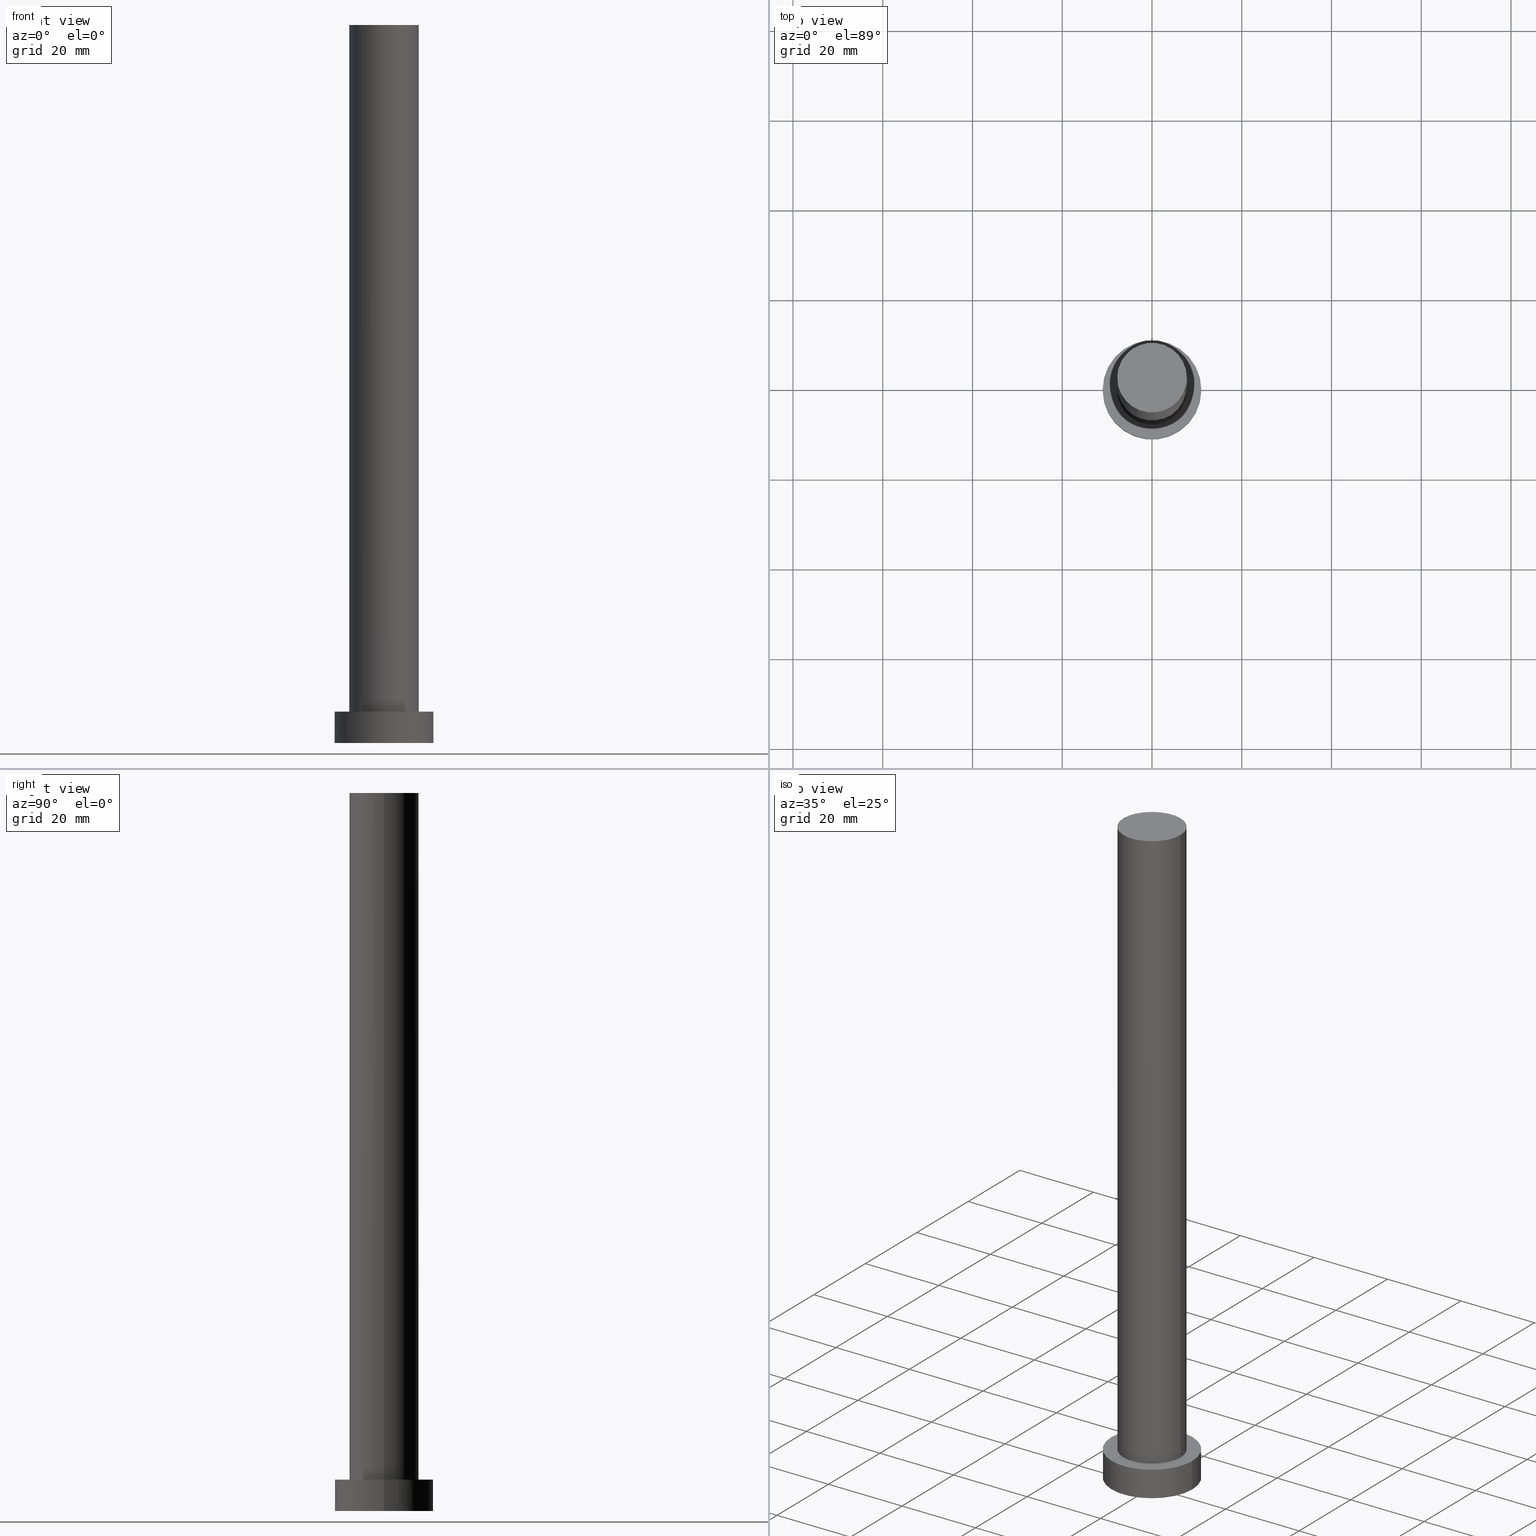
[diagram: canonical four-view strip — front | top / right | iso, engineering-drawing reading convention]
A machine part, canonical four-view strip (front | top / right | iso — engineering-drawing reading convention). The complete STEP part file that produces these views, byte-faithful:
ISO-10303-21;
HEADER;
FILE_DESCRIPTION (( 'STEP AP203' ),
    '1' );
FILE_NAME ('2d6e.STEP',
    '2023-02-13T09:48:51',
    ( '' ),
    ( '' ),
    'SwSTEP 2.0',
    'SolidWorks 2019',
    '' );
FILE_SCHEMA (( 'CONFIG_CONTROL_DESIGN' ));
ENDSEC;

DATA;
#1 = ORIENTED_EDGE ( 'NONE', *, *, #159, .T. ) ;
#2 = APPROVAL_STATUS ( 'not_yet_approved' ) ;
#3 = ORIENTED_EDGE ( 'NONE', *, *, #159, .F. ) ;
#4 = DIRECTION ( 'NONE',  ( 0.000000000000000000, 0.000000000000000000, 1.000000000000000000 ) ) ;
#5 = EDGE_CURVE ( 'NONE', #41, #19, #140, .T. ) ;
#6 = ADVANCED_BREP_SHAPE_REPRESENTATION ( '2d6e', ( #134, #114 ), #236 ) ;
#7 = PLANE ( 'NONE',  #153 ) ;
#8 = PRODUCT_DEFINITION_SHAPE ( 'NONE', 'NONE',  #75 ) ;
#9 = ORIENTED_EDGE ( 'NONE', *, *, #201, .F. ) ;
#10 = DIRECTION ( 'NONE',  ( 0.000000000000000000, 0.000000000000000000, 1.000000000000000000 ) ) ;
#11 = CARTESIAN_POINT ( 'NONE',  ( -11.00000000000000000, 0.000000000000000000, 0.000000000000000000 ) ) ;
#12 = CARTESIAN_POINT ( 'NONE',  ( 0.000000000000000000, 0.000000000000000000, 7.000000000000000000 ) ) ;
#13 = AXIS2_PLACEMENT_3D ( 'NONE', #71, #31, #28 ) ;
#14 = EDGE_CURVE ( 'NONE', #80, #98, #183, .T. ) ;
#15 = PERSON_AND_ORGANIZATION ( #214, #240 ) ;
#16 = LOCAL_TIME ( 10, 48, 51.00000000000000000, #230 ) ;
#17 = AXIS2_PLACEMENT_3D ( 'NONE', #59, #143, #223 ) ;
#18 = LOCAL_TIME ( 10, 48, 51.00000000000000000, #155 ) ;
#19 = VERTEX_POINT ( 'NONE', #47 ) ;
#20 = PERSON_AND_ORGANIZATION ( #214, #240 ) ;
#21 = ORIENTED_EDGE ( 'NONE', *, *, #33, .F. ) ;
#22 = ORIENTED_EDGE ( 'NONE', *, *, #95, .F. ) ;
#23 = FACE_OUTER_BOUND ( 'NONE', #174, .T. ) ;
#24 = PERSON_AND_ORGANIZATION ( #214, #240 ) ;
#25 = CARTESIAN_POINT ( 'NONE',  ( 0.000000000000000000, 0.000000000000000000, 160.0000000000000000 ) ) ;
#26 = CARTESIAN_POINT ( 'NONE',  ( -7.750000000000000000, 0.000000000000000000, 7.000000000000000000 ) ) ;
#27 = PERSON_AND_ORGANIZATION_ROLE ( 'classification_officer' ) ;
#28 = DIRECTION ( 'NONE',  ( -1.000000000000000000, 0.000000000000000000, 0.000000000000000000 ) ) ;
#29 = EDGE_CURVE ( 'NONE', #239, #195, #175, .T. ) ;
#30 = AXIS2_PLACEMENT_3D ( 'NONE', #228, #124, #202 ) ;
#31 = DIRECTION ( 'NONE',  ( -0.000000000000000000, -0.000000000000000000, -1.000000000000000000 ) ) ;
#32 =( NAMED_UNIT ( * ) PLANE_ANGLE_UNIT ( ) SI_UNIT ( $, .RADIAN. ) );
#33 = EDGE_CURVE ( 'NONE', #195, #239, #110, .T. ) ;
#34 = LOCAL_TIME ( 10, 48, 51.00000000000000000, #123 ) ;
#35 = DIRECTION ( 'NONE',  ( 1.000000000000000000, 0.000000000000000000, -0.000000000000000000 ) ) ;
#36 = VECTOR ( 'NONE', #65, 1000.000000000000000 ) ;
#37 = PERSON_AND_ORGANIZATION_ROLE ( 'design_owner' ) ;
#38 = CLOSED_SHELL ( 'NONE', ( #135, #253, #77, #209, #251, #184, #255 ) ) ;
#39 = CIRCLE ( 'NONE', #53, 7.750000000000000000 ) ;
#40 = LINE ( 'NONE', #100, #207 ) ;
#41 = VERTEX_POINT ( 'NONE', #11 ) ;
#42 = EDGE_LOOP ( 'NONE', ( #158, #117, #1, #9 ) ) ;
#43 = APPROVAL_DATE_TIME ( #197, #52 ) ;
#44 = ORIENTED_EDGE ( 'NONE', *, *, #95, .T. ) ;
#45 = VECTOR ( 'NONE', #249, 1000.000000000000000 ) ;
#46 = CARTESIAN_POINT ( 'NONE',  ( 0.000000000000000000, 0.000000000000000000, 7.000000000000000000 ) ) ;
#47 = CARTESIAN_POINT ( 'NONE',  ( 11.00000000000000000, 1.347111479062088405E-15, 0.000000000000000000 ) ) ;
#48 = APPROVAL_DATE_TIME ( #101, #86 ) ;
#49 = DIRECTION ( 'NONE',  ( 1.000000000000000000, 0.000000000000000000, 0.000000000000000000 ) ) ;
#50 = CARTESIAN_POINT ( 'NONE',  ( 0.000000000000000000, 0.000000000000000000, 160.0000000000000000 ) ) ;
#51 = UNCERTAINTY_MEASURE_WITH_UNIT (LENGTH_MEASURE( 1.000000000000000082E-05 ), #188, 'distance_accuracy_value', 'NONE');
#52 = APPROVAL ( #145, 'NEUR�EN�' ) ;
#53 = AXIS2_PLACEMENT_3D ( 'NONE', #46, #141, #78 ) ;
#54 = DATE_AND_TIME ( #112, #18 ) ;
#55 = ORIENTED_EDGE ( 'NONE', *, *, #33, .T. ) ;
#56 = CC_DESIGN_SECURITY_CLASSIFICATION ( #215, ( #79 ) ) ;
#57 = CARTESIAN_POINT ( 'NONE',  ( 0.000000000000000000, 0.000000000000000000, 7.000000000000000000 ) ) ;
#58 = ORIENTED_EDGE ( 'NONE', *, *, #107, .F. ) ;
#59 = CARTESIAN_POINT ( 'NONE',  ( 0.000000000000000000, 0.000000000000000000, 7.000000000000000000 ) ) ;
#60 = DIRECTION ( 'NONE',  ( -1.000000000000000000, 0.000000000000000000, 0.000000000000000000 ) ) ;
#61 = ORIENTED_EDGE ( 'NONE', *, *, #107, .T. ) ;
#62 = CC_DESIGN_APPROVAL ( #52, ( #79 ) ) ;
#63 = APPROVAL_ROLE ( '' ) ;
#64 = AXIS2_PLACEMENT_3D ( 'NONE', #176, #4, #81 ) ;
#65 = DIRECTION ( 'NONE',  ( -0.000000000000000000, -0.000000000000000000, -1.000000000000000000 ) ) ;
#66 = AXIS2_PLACEMENT_3D ( 'NONE', #189, #187, #204 ) ;
#67 = EDGE_CURVE ( 'NONE', #80, #99, #208, .T. ) ;
#68 = CARTESIAN_POINT ( 'NONE',  ( 0.000000000000000000, 0.000000000000000000, 160.0000000000000000 ) ) ;
#69 =( NAMED_UNIT ( * ) SI_UNIT ( $, .STERADIAN. ) SOLID_ANGLE_UNIT ( ) );
#70 = CALENDAR_DATE ( 2023, 13, 2 ) ;
#71 = CARTESIAN_POINT ( 'NONE',  ( 0.000000000000000000, 0.000000000000000000, 7.000000000000000000 ) ) ;
#72 = FACE_OUTER_BOUND ( 'NONE', #157, .T. ) ;
#73 = CIRCLE ( 'NONE', #30, 11.00000000000000000 ) ;
#74 = APPROVAL_ROLE ( '' ) ;
#75 = PRODUCT_DEFINITION ( 'NEZN�M�', '', #79, #168 ) ;
#76 = LOCAL_TIME ( 10, 48, 51.00000000000000000, #246 ) ;
#77 = ADVANCED_FACE ( 'NONE', ( #148 ), #247, .T. ) ;
#78 = DIRECTION ( 'NONE',  ( 1.000000000000000000, 0.000000000000000000, 0.000000000000000000 ) ) ;
#79 = PRODUCT_DEFINITION_FORMATION_WITH_SPECIFIED_SOURCE ( 'LIBOVOLN�', '', #94, .NOT_KNOWN. ) ;
#80 = VERTEX_POINT ( 'NONE', #167 ) ;
#81 = DIRECTION ( 'NONE',  ( 1.000000000000000000, 0.000000000000000000, -0.000000000000000000 ) ) ;
#82 = APPLICATION_CONTEXT ( 'configuration controlled 3d designs of mechanical parts and assemblies' ) ;
#83 = ORIENTED_EDGE ( 'NONE', *, *, #5, .T. ) ;
#84 = CARTESIAN_POINT ( 'NONE',  ( 0.000000000000000000, 0.000000000000000000, 0.000000000000000000 ) ) ;
#85 = ORIENTED_EDGE ( 'NONE', *, *, #111, .F. ) ;
#86 = APPROVAL ( #2, 'NEUR�EN�' ) ;
#87 = DATE_TIME_ROLE ( 'classification_date' ) ;
#88 = DIRECTION ( 'NONE',  ( 0.000000000000000000, 0.000000000000000000, 1.000000000000000000 ) ) ;
#89 = DATE_AND_TIME ( #182, #16 ) ;
#90 = CARTESIAN_POINT ( 'NONE',  ( -7.750000000000000000, 0.000000000000000000, 160.0000000000000000 ) ) ;
#91 = CARTESIAN_POINT ( 'NONE',  ( 11.00000000000000000, 1.347111479062088405E-15, 7.000000000000000000 ) ) ;
#92 = CIRCLE ( 'NONE', #156, 7.750000000000000000 ) ;
#93 = CC_DESIGN_PERSON_AND_ORGANIZATION_ASSIGNMENT ( #20, #179, ( #79 ) ) ;
#94 = PRODUCT ( '2d6e', '2d6e', '', ( #136 ) ) ;
#95 = EDGE_CURVE ( 'NONE', #239, #41, #150, .T. ) ;
#96 = EDGE_LOOP ( 'NONE', ( #216, #55 ) ) ;
#97 = CYLINDRICAL_SURFACE ( 'NONE', #165, 7.750000000000000000 ) ;
#98 = VERTEX_POINT ( 'NONE', #108 ) ;
#99 = VERTEX_POINT ( 'NONE', #90 ) ;
#100 = CARTESIAN_POINT ( 'NONE',  ( -7.750000000000000000, 0.000000000000000000, 160.0000000000000000 ) ) ;
#101 = DATE_AND_TIME ( #70, #76 ) ;
#102 = EDGE_LOOP ( 'NONE', ( #85, #242, #44, #83 ) ) ;
#103 = DIRECTION ( 'NONE',  ( -0.000000000000000000, -0.000000000000000000, -1.000000000000000000 ) ) ;
#104 = FACE_OUTER_BOUND ( 'NONE', #42, .T. ) ;
#105 = PLANE ( 'NONE',  #133 ) ;
#106 = DIRECTION ( 'NONE',  ( 0.000000000000000000, 0.000000000000000000, 1.000000000000000000 ) ) ;
#107 = EDGE_CURVE ( 'NONE', #99, #80, #92, .T. ) ;
#108 = CARTESIAN_POINT ( 'NONE',  ( 7.750000000000000000, 9.491012693391987787E-16, 7.000000000000000000 ) ) ;
#109 = PERSON_AND_ORGANIZATION ( #214, #240 ) ;
#110 = CIRCLE ( 'NONE', #66, 11.00000000000000000 ) ;
#111 = EDGE_CURVE ( 'NONE', #195, #19, #206, .T. ) ;
#112 = CALENDAR_DATE ( 2023, 13, 2 ) ;
#113 = LOCAL_TIME ( 10, 48, 51.00000000000000000, #222 ) ;
#114 = AXIS2_PLACEMENT_3D ( 'NONE', #191, #238, #252 ) ;
#115 = DIRECTION ( 'NONE',  ( -0.000000000000000000, -0.000000000000000000, -1.000000000000000000 ) ) ;
#116 = VERTEX_POINT ( 'NONE', #26 ) ;
#117 = ORIENTED_EDGE ( 'NONE', *, *, #14, .T. ) ;
#118 = FACE_BOUND ( 'NONE', #120, .T. ) ;
#119 = PERSON_AND_ORGANIZATION ( #214, #240 ) ;
#120 = EDGE_LOOP ( 'NONE', ( #254, #3 ) ) ;
#121 = PLANE ( 'NONE',  #64 ) ;
#122 = PERSON_AND_ORGANIZATION_ROLE ( 'creator' ) ;
#123 = COORDINATED_UNIVERSAL_TIME_OFFSET ( 1, 0, .AHEAD. ) ;
#124 = DIRECTION ( 'NONE',  ( 0.000000000000000000, 0.000000000000000000, 1.000000000000000000 ) ) ;
#125 = EDGE_CURVE ( 'NONE', #19, #41, #73, .T. ) ;
#126 = DIRECTION ( 'NONE',  ( 1.000000000000000000, 0.000000000000000000, 0.000000000000000000 ) ) ;
#127 = APPROVAL_PERSON_ORGANIZATION ( #248, #52, #177 ) ;
#128 = DIRECTION ( 'NONE',  ( 0.000000000000000000, 0.000000000000000000, 1.000000000000000000 ) ) ;
#129 = APPROVAL_PERSON_ORGANIZATION ( #109, #170, #74 ) ;
#130 = DIRECTION ( 'NONE',  ( 1.000000000000000000, 0.000000000000000000, 0.000000000000000000 ) ) ;
#131 = FACE_OUTER_BOUND ( 'NONE', #213, .T. ) ;
#132 = CC_DESIGN_PERSON_AND_ORGANIZATION_ASSIGNMENT ( #15, #173, ( #75 ) ) ;
#133 = AXIS2_PLACEMENT_3D ( 'NONE', #169, #151, #35 ) ;
#134 = MANIFOLD_SOLID_BREP ( 'P�idat vysunut�m3', #38 ) ;
#135 = ADVANCED_FACE ( 'NONE', ( #104 ), #241, .T. ) ;
#136 = MECHANICAL_CONTEXT ( 'NONE', #210, 'mechanical' ) ;
#137 = PRODUCT_RELATED_PRODUCT_CATEGORY ( 'detail', '', ( #94 ) ) ;
#138 = ORIENTED_EDGE ( 'NONE', *, *, #201, .T. ) ;
#139 = CC_DESIGN_APPROVAL ( #170, ( #75 ) ) ;
#140 = CIRCLE ( 'NONE', #144, 11.00000000000000000 ) ;
#141 = DIRECTION ( 'NONE',  ( 0.000000000000000000, 0.000000000000000000, 1.000000000000000000 ) ) ;
#142 = ORIENTED_EDGE ( 'NONE', *, *, #125, .T. ) ;
#143 = DIRECTION ( 'NONE',  ( -0.000000000000000000, -0.000000000000000000, -1.000000000000000000 ) ) ;
#144 = AXIS2_PLACEMENT_3D ( 'NONE', #200, #180, #49 ) ;
#145 = APPROVAL_STATUS ( 'not_yet_approved' ) ;
#146 = CARTESIAN_POINT ( 'NONE',  ( -11.00000000000000000, 0.000000000000000000, 7.000000000000000000 ) ) ;
#147 = DIRECTION ( 'NONE',  ( -1.000000000000000000, 0.000000000000000000, 0.000000000000000000 ) ) ;
#148 = FACE_OUTER_BOUND ( 'NONE', #102, .T. ) ;
#149 = PERSON_AND_ORGANIZATION ( #214, #240 ) ;
#150 = LINE ( 'NONE', #146, #211 ) ;
#151 = DIRECTION ( 'NONE',  ( 0.000000000000000000, 0.000000000000000000, 1.000000000000000000 ) ) ;
#152 = CC_DESIGN_APPROVAL ( #86, ( #215 ) ) ;
#153 = AXIS2_PLACEMENT_3D ( 'NONE', #84, #128, #250 ) ;
#154 = PERSON_AND_ORGANIZATION ( #214, #240 ) ;
#155 = COORDINATED_UNIVERSAL_TIME_OFFSET ( 1, 0, .AHEAD. ) ;
#156 = AXIS2_PLACEMENT_3D ( 'NONE', #50, #10, #130 ) ;
#157 = EDGE_LOOP ( 'NONE', ( #21, #243, #142, #22 ) ) ;
#158 = ORIENTED_EDGE ( 'NONE', *, *, #67, .F. ) ;
#159 = EDGE_CURVE ( 'NONE', #98, #116, #217, .T. ) ;
#160 = ORIENTED_EDGE ( 'NONE', *, *, #194, .T. ) ;
#161 = CYLINDRICAL_SURFACE ( 'NONE', #17, 11.00000000000000000 ) ;
#162 = CARTESIAN_POINT ( 'NONE',  ( -11.00000000000000000, 0.000000000000000000, 7.000000000000000000 ) ) ;
#163 = ORIENTED_EDGE ( 'NONE', *, *, #14, .F. ) ;
#164 = EDGE_LOOP ( 'NONE', ( #163, #58, #138, #160 ) ) ;
#165 = AXIS2_PLACEMENT_3D ( 'NONE', #25, #103, #60 ) ;
#166 = CARTESIAN_POINT ( 'NONE',  ( 7.750000000000000000, 9.491012693391987787E-16, 160.0000000000000000 ) ) ;
#167 = CARTESIAN_POINT ( 'NONE',  ( 7.750000000000000000, 9.491012693391987787E-16, 160.0000000000000000 ) ) ;
#168 = DESIGN_CONTEXT ( 'detailed design', #82, 'design' ) ;
#169 = CARTESIAN_POINT ( 'NONE',  ( 0.000000000000000000, 0.000000000000000000, 160.0000000000000000 ) ) ;
#170 = APPROVAL ( #192, 'NEUR�EN�' ) ;
#171 = AXIS2_PLACEMENT_3D ( 'NONE', #57, #178, #181 ) ;
#172 = ORIENTED_EDGE ( 'NONE', *, *, #5, .F. ) ;
#173 = PERSON_AND_ORGANIZATION_ROLE ( 'creator' ) ;
#174 = EDGE_LOOP ( 'NONE', ( #172, #245 ) ) ;
#175 = CIRCLE ( 'NONE', #235, 11.00000000000000000 ) ;
#176 = CARTESIAN_POINT ( 'NONE',  ( 0.000000000000000000, 0.000000000000000000, 7.000000000000000000 ) ) ;
#177 = APPROVAL_ROLE ( '' ) ;
#178 = DIRECTION ( 'NONE',  ( 0.000000000000000000, 0.000000000000000000, 1.000000000000000000 ) ) ;
#179 = PERSON_AND_ORGANIZATION_ROLE ( 'design_supplier' ) ;
#180 = DIRECTION ( 'NONE',  ( 0.000000000000000000, 0.000000000000000000, 1.000000000000000000 ) ) ;
#181 = DIRECTION ( 'NONE',  ( 1.000000000000000000, 0.000000000000000000, 0.000000000000000000 ) ) ;
#182 = CALENDAR_DATE ( 2023, 13, 2 ) ;
#183 = LINE ( 'NONE', #166, #45 ) ;
#184 = ADVANCED_FACE ( 'NONE', ( #226 ), #97, .T. ) ;
#185 = APPROVAL_PERSON_ORGANIZATION ( #24, #86, #63 ) ;
#186 = CALENDAR_DATE ( 2023, 13, 2 ) ;
#187 = DIRECTION ( 'NONE',  ( 0.000000000000000000, 0.000000000000000000, 1.000000000000000000 ) ) ;
#188 =( LENGTH_UNIT ( ) NAMED_UNIT ( * ) SI_UNIT ( .MILLI., .METRE. ) );
#189 = CARTESIAN_POINT ( 'NONE',  ( 0.000000000000000000, 0.000000000000000000, 7.000000000000000000 ) ) ;
#190 = CC_DESIGN_PERSON_AND_ORGANIZATION_ASSIGNMENT ( #119, #122, ( #79 ) ) ;
#191 = CARTESIAN_POINT ( 'NONE',  ( 0.000000000000000000, 0.000000000000000000, 0.000000000000000000 ) ) ;
#192 = APPROVAL_STATUS ( 'not_yet_approved' ) ;
#193 = APPROVAL_DATE_TIME ( #54, #170 ) ;
#194 = EDGE_CURVE ( 'NONE', #116, #98, #39, .T. ) ;
#195 = VERTEX_POINT ( 'NONE', #218 ) ;
#196 = FACE_OUTER_BOUND ( 'NONE', #96, .T. ) ;
#197 = DATE_AND_TIME ( #199, #34 ) ;
#198 = DIRECTION ( 'NONE',  ( -0.000000000000000000, -0.000000000000000000, -1.000000000000000000 ) ) ;
#199 = CALENDAR_DATE ( 2023, 13, 2 ) ;
#200 = CARTESIAN_POINT ( 'NONE',  ( 0.000000000000000000, 0.000000000000000000, 0.000000000000000000 ) ) ;
#201 = EDGE_CURVE ( 'NONE', #99, #116, #40, .T. ) ;
#202 = DIRECTION ( 'NONE',  ( 1.000000000000000000, 0.000000000000000000, 0.000000000000000000 ) ) ;
#203 = SECURITY_CLASSIFICATION_LEVEL ( 'unclassified' ) ;
#204 = DIRECTION ( 'NONE',  ( 1.000000000000000000, 0.000000000000000000, 0.000000000000000000 ) ) ;
#205 = AXIS2_PLACEMENT_3D ( 'NONE', #221, #115, #147 ) ;
#206 = LINE ( 'NONE', #91, #36 ) ;
#207 = VECTOR ( 'NONE', #198, 1000.000000000000000 ) ;
#208 = CIRCLE ( 'NONE', #224, 7.750000000000000000 ) ;
#209 = ADVANCED_FACE ( 'NONE', ( #118, #196 ), #121, .T. ) ;
#210 = APPLICATION_CONTEXT ( 'configuration controlled 3d designs of mechanical parts and assemblies' ) ;
#211 = VECTOR ( 'NONE', #231, 1000.000000000000000 ) ;
#212 = CC_DESIGN_PERSON_AND_ORGANIZATION_ASSIGNMENT ( #149, #27, ( #215 ) ) ;
#213 = EDGE_LOOP ( 'NONE', ( #61, #220 ) ) ;
#214 = PERSON ( 'NEUR�EN�', 'NEUR�EN�', 'NEUR�EN�', ('NEUR�EN�'), ('NEUR�EN�'), ('NEUR�EN�') ) ;
#215 = SECURITY_CLASSIFICATION ( '', '', #203 ) ;
#216 = ORIENTED_EDGE ( 'NONE', *, *, #29, .T. ) ;
#217 = CIRCLE ( 'NONE', #171, 7.750000000000000000 ) ;
#218 = CARTESIAN_POINT ( 'NONE',  ( 11.00000000000000000, 1.347111479062088405E-15, 7.000000000000000000 ) ) ;
#219 = DATE_AND_TIME ( #186, #113 ) ;
#220 = ORIENTED_EDGE ( 'NONE', *, *, #67, .T. ) ;
#221 = CARTESIAN_POINT ( 'NONE',  ( 0.000000000000000000, 0.000000000000000000, 160.0000000000000000 ) ) ;
#222 = COORDINATED_UNIVERSAL_TIME_OFFSET ( 1, 0, .AHEAD. ) ;
#223 = DIRECTION ( 'NONE',  ( -1.000000000000000000, 0.000000000000000000, 0.000000000000000000 ) ) ;
#224 = AXIS2_PLACEMENT_3D ( 'NONE', #68, #106, #234 ) ;
#225 = CC_DESIGN_PERSON_AND_ORGANIZATION_ASSIGNMENT ( #154, #37, ( #94 ) ) ;
#226 = FACE_OUTER_BOUND ( 'NONE', #164, .T. ) ;
#227 = DATE_TIME_ROLE ( 'creation_date' ) ;
#228 = CARTESIAN_POINT ( 'NONE',  ( 0.000000000000000000, 0.000000000000000000, 0.000000000000000000 ) ) ;
#229 = APPLICATION_PROTOCOL_DEFINITION ( 'international standard', 'config_control_design', 1994, #210 ) ;
#230 = COORDINATED_UNIVERSAL_TIME_OFFSET ( 1, 0, .AHEAD. ) ;
#231 = DIRECTION ( 'NONE',  ( -0.000000000000000000, -0.000000000000000000, -1.000000000000000000 ) ) ;
#232 = SHAPE_DEFINITION_REPRESENTATION ( #8, #6 ) ;
#233 = CC_DESIGN_DATE_AND_TIME_ASSIGNMENT ( #219, #227, ( #75 ) ) ;
#234 = DIRECTION ( 'NONE',  ( 1.000000000000000000, 0.000000000000000000, 0.000000000000000000 ) ) ;
#235 = AXIS2_PLACEMENT_3D ( 'NONE', #12, #88, #126 ) ;
#236 =( GEOMETRIC_REPRESENTATION_CONTEXT ( 3 ) GLOBAL_UNCERTAINTY_ASSIGNED_CONTEXT ( ( #51 ) ) GLOBAL_UNIT_ASSIGNED_CONTEXT ( ( #188, #32, #69 ) ) REPRESENTATION_CONTEXT ( 'NONE', 'WORKASPACE' ) );
#237 = APPLICATION_PROTOCOL_DEFINITION ( 'international standard', 'config_control_design', 1994, #82 ) ;
#238 = DIRECTION ( 'NONE',  ( 0.000000000000000000, 0.000000000000000000, 1.000000000000000000 ) ) ;
#239 = VERTEX_POINT ( 'NONE', #162 ) ;
#240 = ORGANIZATION ( 'NEUR�EN�', 'NEUR�EN�', '' ) ;
#241 = CYLINDRICAL_SURFACE ( 'NONE', #205, 7.750000000000000000 ) ;
#242 = ORIENTED_EDGE ( 'NONE', *, *, #29, .F. ) ;
#243 = ORIENTED_EDGE ( 'NONE', *, *, #111, .T. ) ;
#244 = CC_DESIGN_DATE_AND_TIME_ASSIGNMENT ( #89, #87, ( #215 ) ) ;
#245 = ORIENTED_EDGE ( 'NONE', *, *, #125, .F. ) ;
#246 = COORDINATED_UNIVERSAL_TIME_OFFSET ( 1, 0, .AHEAD. ) ;
#247 = CYLINDRICAL_SURFACE ( 'NONE', #13, 11.00000000000000000 ) ;
#248 = PERSON_AND_ORGANIZATION ( #214, #240 ) ;
#249 = DIRECTION ( 'NONE',  ( -0.000000000000000000, -0.000000000000000000, -1.000000000000000000 ) ) ;
#250 = DIRECTION ( 'NONE',  ( 1.000000000000000000, 0.000000000000000000, -0.000000000000000000 ) ) ;
#251 = ADVANCED_FACE ( 'NONE', ( #23 ), #7, .F. ) ;
#252 = DIRECTION ( 'NONE',  ( 1.000000000000000000, 0.000000000000000000, 0.000000000000000000 ) ) ;
#253 = ADVANCED_FACE ( 'NONE', ( #72 ), #161, .T. ) ;
#254 = ORIENTED_EDGE ( 'NONE', *, *, #194, .F. ) ;
#255 = ADVANCED_FACE ( 'NONE', ( #131 ), #105, .T. ) ;
ENDSEC;
END-ISO-10303-21;
